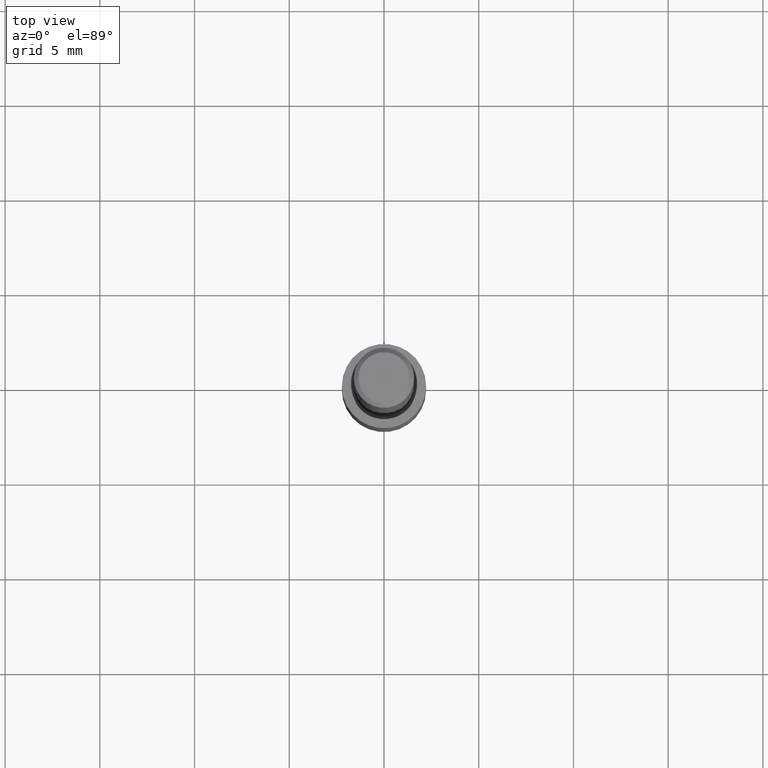
[diagram: clean part render]
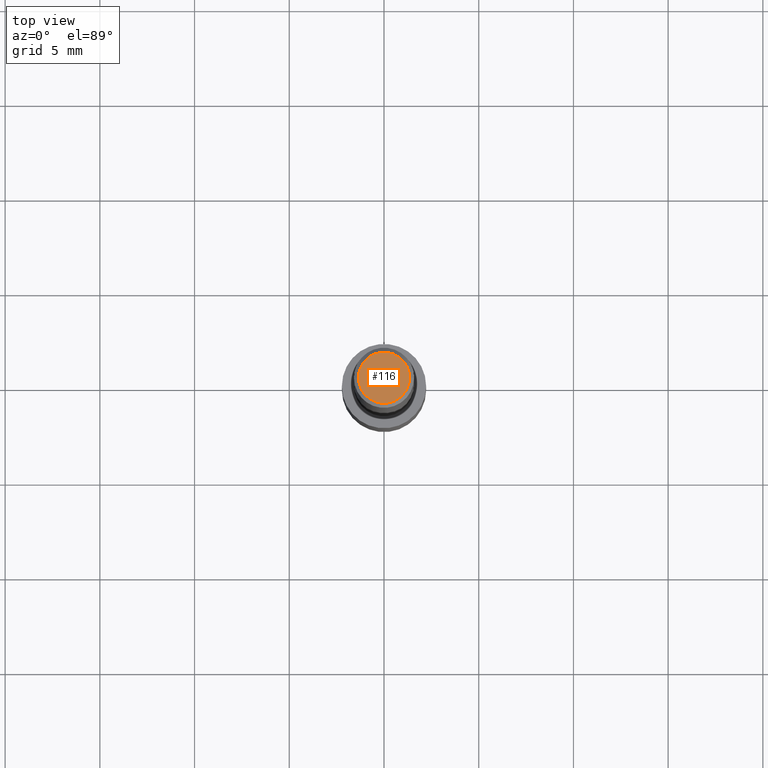
[diagram: same view with one face highlighted and labeled with its STEP entity id]
A machine part, top view. The second image highlights one B-rep face of the part: STEP entity #116.
In plain terms, the highlighted planar face has unit normal (0, -0, -1).
Its self-contained STEP definition (entity closure, byte-faithful):
#1 = CARTESIAN_POINT ( 'NONE',  ( 0.05312499999999999861, -4.129888592719939842E-16, 3.061617000609493422E-21 ) ) ;
#3 = PLANE ( 'NONE',  #82 ) ;
#4 = AXIS2_PLACEMENT_3D ( 'NONE', #339, #28, #138 ) ;
#22 = ORIENTED_EDGE ( 'NONE', *, *, #64, .T. ) ;
#28 = DIRECTION ( 'NONE',  ( -2.445468806185136597E-29, 3.491481338843145583E-15, 1.000000000000000000 ) ) ;
#35 = AXIS2_PLACEMENT_3D ( 'NONE', #312, #314, #293 ) ;
#46 = VERTEX_POINT ( 'NONE', #89 ) ;
#54 = DIRECTION ( 'NONE',  ( -1.000000000000000000, 6.982962677686265922E-15, -4.876176775795935793E-29 ) ) ;
#64 = EDGE_CURVE ( 'NONE', #46, #173, #122, .T. ) ;
#77 = EDGE_CURVE ( 'NONE', #173, #46, #141, .T. ) ;
#82 = AXIS2_PLACEMENT_3D ( 'NONE', #178, #112, #54 ) ;
#89 = CARTESIAN_POINT ( 'NONE',  ( -0.05312499999999999861, 3.873362110279099094E-16, 3.061616995216862494E-21 ) ) ;
#112 = DIRECTION ( 'NONE',  ( 2.438088387897960049E-29, -3.491481338843145188E-15, -1.000000000000000000 ) ) ;
#116 = ADVANCED_FACE ( 'NONE', ( #226 ), #3, .F. ) ;
#122 = CIRCLE ( 'NONE', #35, 0.05312499999999999861 ) ;
#138 = DIRECTION ( 'NONE',  ( 1.000000000000000000, -6.982962677686266711E-15, 4.876176628004948512E-29 ) ) ;
#141 = CIRCLE ( 'NONE', #4, 0.05312499999999999861 ) ;
#173 = VERTEX_POINT ( 'NONE', #1 ) ;
#178 = CARTESIAN_POINT ( 'NONE',  ( -3.743544432386672853E-50, 5.344789307371238476E-36, 1.530808498934197599E-21 ) ) ;
#226 = FACE_OUTER_BOUND ( 'NONE', #239, .T. ) ;
#239 = EDGE_LOOP ( 'NONE', ( #22, #241 ) ) ;
#241 = ORIENTED_EDGE ( 'NONE', *, *, #77, .T. ) ;
#293 = DIRECTION ( 'NONE',  ( 1.000000000000000000, -6.982962677686266711E-15, 4.876176628004948512E-29 ) ) ;
#312 = CARTESIAN_POINT ( 'NONE',  ( -7.487088864773345706E-50, 1.068957861474247695E-35, 3.061616997868395197E-21 ) ) ;
#314 = DIRECTION ( 'NONE',  ( -2.445468806185136597E-29, 3.491481338843145583E-15, 1.000000000000000000 ) ) ;
#339 = CARTESIAN_POINT ( 'NONE',  ( -7.487088864773345706E-50, 1.068957861474247695E-35, 3.061616997868395197E-21 ) ) ;